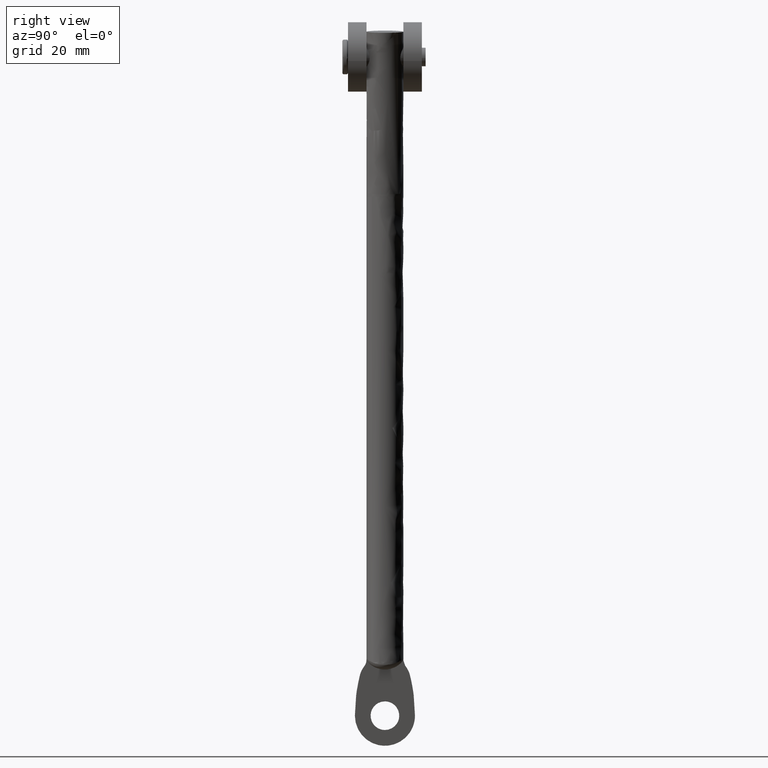
[diagram: clean part render]
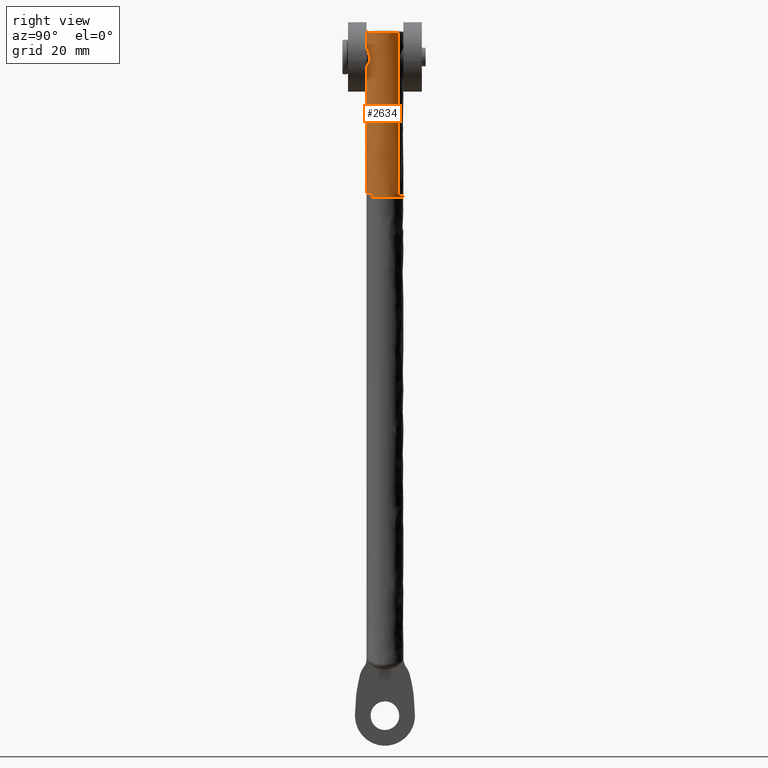
[diagram: same view with one face highlighted and labeled with its STEP entity id]
A machine part, right view. The second image highlights one B-rep face of the part: STEP entity #2634.
In plain terms, the highlighted face is a freeform B-spline surface patch.
Its self-contained STEP definition (entity closure, byte-faithful):
#1705=CARTESIAN_POINT('',(7.522348228105205,-3.999033050475186,144.668316830232700));
#1706=VERTEX_POINT('',#1705);
#1707=CARTESIAN_POINT('',(9.584145314944630,-3.323064257270348,142.307539947545000));
#1708=VERTEX_POINT('',#1707);
#1709=CARTESIAN_POINT('',(7.522348228105205,-3.999033050475186,144.668316830232700));
#1710=CARTESIAN_POINT('',(7.557369790289370,-3.999799256812178,144.667951010826700));
#1711=CARTESIAN_POINT('',(7.592510817187822,-4.000114873961673,144.666708364096510));
#1712=CARTESIAN_POINT('',(7.663038884572331,-3.999810891198615,144.662423080252010));
#1713=CARTESIAN_POINT('',(7.698345700500449,-3.999188046580984,144.659378522062010));
#1714=CARTESIAN_POINT('',(7.803206811101949,-3.995939152805263,144.647677468700100));
#1715=CARTESIAN_POINT('',(7.941105642463338,-3.987929447145600,144.625196934972110));
#1716=CARTESIAN_POINT('',(8.075300647290488,-3.972842566512861,144.589405100703910));
#1717=CARTESIAN_POINT('',(8.174568459927976,-3.958954388418349,144.557582681673690));
#1718=CARTESIAN_POINT('',(8.207427612885027,-3.953895939193590,144.546143891768310));
#1719=CARTESIAN_POINT('',(8.272682836400820,-3.942932152044237,144.521586735460010));
#1720=CARTESIAN_POINT('',(8.305089598803763,-3.937021360161204,144.508456869352390));
#1721=CARTESIAN_POINT('',(8.464097451847144,-3.905772972105924,144.439406191873500));
#1722=CARTESIAN_POINT('',(8.583258318506777,-3.875126871088678,144.372849611536510));
#1723=CARTESIAN_POINT('',(8.750948582059706,-3.822757064529819,144.256857295991210));
#1724=CARTESIAN_POINT('',(8.805236039969342,-3.804133192050053,144.215255989367390));
#1725=CARTESIAN_POINT('',(8.908697393156340,-3.765613016104545,144.127703545723700));
#1726=CARTESIAN_POINT('',(8.957848463982964,-3.745746873615110,144.081826383432400));
#1727=CARTESIAN_POINT('',(9.097977095895866,-3.684991635670443,143.937997963091900));
#1728=CARTESIAN_POINT('',(9.181709756552326,-3.642921026002477,143.833932488019600));
#1729=CARTESIAN_POINT('',(9.329996595224399,-3.559387319424268,143.608083212598100));
#1730=CARTESIAN_POINT('',(9.392380482635367,-3.519169568790809,143.489591796275500));
#1731=CARTESIAN_POINT('',(9.468894190977478,-3.464350623970773,143.303008461594090));
#1732=CARTESIAN_POINT('',(9.491534752083650,-3.446997324383999,143.239319523848710));
#1733=CARTESIAN_POINT('',(9.521042202518000,-3.422811974242806,143.141339899312810));
#1734=CARTESIAN_POINT('',(9.530134039435994,-3.415058305274926,143.108271373944890));
#1735=CARTESIAN_POINT('',(9.546780114274892,-3.400254634955333,143.041270015898700));
#1736=CARTESIAN_POINT('',(9.554327625278173,-3.393208042904296,143.007334097917610));
#1737=CARTESIAN_POINT('',(9.587694841701442,-3.360357171754894,142.837542751386910));
#1738=CARTESIAN_POINT('',(9.600984288663758,-3.341316971902931,142.699702151620190));
#1739=CARTESIAN_POINT('',(9.600100672203967,-3.326176681244016,142.489551382134210));
#1740=CARTESIAN_POINT('',(9.596233832376248,-3.323381778508662,142.418463212868890));
#1741=CARTESIAN_POINT('',(9.587422380482158,-3.322938020792144,142.334798561342500));
#1742=CARTESIAN_POINT('',(9.585849642784872,-3.322956180856969,142.321152390346500));
#1743=CARTESIAN_POINT('',(9.584145314944630,-3.323064257270348,142.307539947545000));
#1744=B_SPLINE_CURVE_WITH_KNOTS('',3,(#1709,#1710,#1711,#1712,#1713,#1714,#1715,#1716,#1717,#1718,#1719,#1720,#1721,#1722,#1723,#1724,#1725,#1726,#1727,#1728,#1729,#1730,#1731,#1732,#1733,#1734,#1735,#1736,#1737,#1738,#1739,#1740,#1741,#1742,#1743),.UNSPECIFIED.,.F.,.U.,(4,2,2,1,2,2,2,2,2,2,2,2,2,2,2,2,2,4),(0.499999999999975,0.507812499999978,0.515624999999981,0.531249999999986,0.546874999999991,0.554687499999994,0.562499999999997,0.593750000000004,0.609375000000007,0.625000000000011,0.656250000000018,0.687500000000024,0.703125000000028,0.710937500000027,0.718750000000025,0.750000000000020,0.765625000000021,0.768679257796802),.UNSPECIFIED.);
#1745=EDGE_CURVE('',#1706,#1708,#1744,.T.);
#1747=CARTESIAN_POINT('',(5.400495781253770,-3.485749266035983,142.586981427695290));
#1748=VERTEX_POINT('',#1747);
#1749=CARTESIAN_POINT('',(5.400495781253770,-3.485749266035983,142.586981427695290));
#1750=CARTESIAN_POINT('',(5.400782117082802,-3.483863611190825,142.619270091181590));
#1751=CARTESIAN_POINT('',(5.401819206709678,-3.482377763517798,142.651778725786190));
#1752=CARTESIAN_POINT('',(5.405540430557007,-3.480172275540046,142.719253350010210));
#1753=CARTESIAN_POINT('',(5.408357878279227,-3.479525640173766,142.754246216800510));
#1754=CARTESIAN_POINT('',(5.419389052906518,-3.479075903472400,142.858666118374490));
#1755=CARTESIAN_POINT('',(5.440961403684576,-3.482452705762751,142.996405121797610));
#1756=CARTESIAN_POINT('',(5.476025822054123,-3.493506780805759,143.131226244074810));
#1757=CARTESIAN_POINT('',(5.517924722043718,-3.508220612664518,143.264579208725710));
#1758=CARTESIAN_POINT('',(5.542400932748614,-3.517454551298635,143.330666533144610));
#1759=CARTESIAN_POINT('',(5.624300134182822,-3.549417632548673,143.522089834450810));
#1760=CARTESIAN_POINT('',(5.690512511989269,-3.576524923241928,143.642262952363210));
#1761=CARTESIAN_POINT('',(5.806950742020291,-3.622791789218599,143.812174591631900));
#1762=CARTESIAN_POINT('',(5.848714406237986,-3.639175086693637,143.867097286111000));
#1763=CARTESIAN_POINT('',(5.936385769433128,-3.672635224220298,143.971449676143690));
#1764=CARTESIAN_POINT('',(5.982478491296192,-3.689787396820571,144.021171339480190));
#1765=CARTESIAN_POINT('',(6.079174233507549,-3.724407050518975,144.115899984528400));
#1766=CARTESIAN_POINT('',(6.129777189082310,-3.741875658683250,144.160906626318310));
#1767=CARTESIAN_POINT('',(6.235649171771756,-3.776631226467709,144.246225336362390));
#1768=CARTESIAN_POINT('',(6.291225660387936,-3.794005255206803,144.286722819056000));
#1769=CARTESIAN_POINT('',(6.462471382096615,-3.844256914266055,144.399092732517800));
#1770=CARTESIAN_POINT('',(6.582752249643975,-3.875358962638651,144.462267873633490));
#1771=CARTESIAN_POINT('',(6.772868087680585,-3.915914749582967,144.539562305664190));
#1772=CARTESIAN_POINT('',(6.837867076805112,-3.928417803244545,144.562391556583800));
#1773=CARTESIAN_POINT('',(6.937988841133791,-3.945307907994606,144.592014721619710));
#1774=CARTESIAN_POINT('',(6.971850426553328,-3.950631232225036,144.601123078487600));
#1775=CARTESIAN_POINT('',(7.039594714730066,-3.960472829058025,144.617543516555090));
#1776=CARTESIAN_POINT('',(7.073580116354962,-3.965009744915900,144.624888989570790));
#1777=CARTESIAN_POINT('',(7.244072608372806,-3.985715770043698,144.657346598526910));
#1778=CARTESIAN_POINT('',(7.382261979366867,-3.995968225127181,144.669780107857010));
#1779=CARTESIAN_POINT('',(7.522348228105205,-3.999033050475186,144.668316830232700));
#1780=B_SPLINE_CURVE_WITH_KNOTS('',3,(#1749,#1750,#1751,#1752,#1753,#1754,#1755,#1756,#1757,#1758,#1759,#1760,#1761,#1762,#1763,#1764,#1765,#1766,#1767,#1768,#1769,#1770,#1771,#1772,#1773,#1774,#1775,#1776,#1777,#1778,#1779),.UNSPECIFIED.,.F.,.U.,(4,2,2,1,2,2,2,2,2,2,2,2,2,2,2,4),(0.250641929737073,0.257812499999935,0.265624999999935,0.281249999999935,0.296874999999936,0.312499999999936,0.343749999999937,0.359374999999940,0.374999999999943,0.390624999999947,0.406249999999950,0.437499999999956,0.453124999999959,0.460937499999962,0.468749999999964,0.499999999999975),.UNSPECIFIED.);
#1781=EDGE_CURVE('',#1748,#1706,#1780,.T.);
#1891=CARTESIAN_POINT('',(7.500413774066671,-3.983493086659858,140.468431385803400));
#1892=VERTEX_POINT('',#1891);
#1893=CARTESIAN_POINT('',(9.584145314944630,-3.323064257270348,142.307539947545000));
#1894=CARTESIAN_POINT('',(9.577132411973437,-3.323509079178129,142.251513507554900));
#1895=CARTESIAN_POINT('',(9.556415344075470,-3.327923223263147,142.127128092388890));
#1896=CARTESIAN_POINT('',(9.524769654435957,-3.339718687005999,142.005540774241690));
#1897=CARTESIAN_POINT('',(9.482969095531230,-3.357074424357856,141.872488163763990));
#1898=CARTESIAN_POINT('',(9.458548080945450,-3.367969722364957,141.806522540427010));
#1899=CARTESIAN_POINT('',(9.376879018284551,-3.405697645173910,141.615510404296600));
#1900=CARTESIAN_POINT('',(9.311067155461911,-3.437621001344986,141.496014262078400));
#1901=CARTESIAN_POINT('',(9.195817830934040,-3.492147463437765,141.327366873917700));
#1902=CARTESIAN_POINT('',(9.154575400494737,-3.511453113384161,141.272941589728900));
#1903=CARTESIAN_POINT('',(9.068081296893043,-3.550989232954838,141.169516436295910));
#1904=CARTESIAN_POINT('',(9.022650189313154,-3.571306387241904,141.120236244447910));
#1905=CARTESIAN_POINT('',(8.927416420113763,-3.612497219005186,141.026310664354300));
#1906=CARTESIAN_POINT('',(8.877613758725936,-3.633372103365515,140.981665795973900));
#1907=CARTESIAN_POINT('',(8.773477323644185,-3.675189908119828,140.896960765795510));
#1908=CARTESIAN_POINT('',(8.718875351548805,-3.696226407753704,140.856742961933010));
#1909=CARTESIAN_POINT('',(8.550791832931614,-3.757664220669129,140.745025386499490));
#1910=CARTESIAN_POINT('',(8.432639220388428,-3.796605347731475,140.681846095125710));
#1911=CARTESIAN_POINT('',(8.245589787852104,-3.849623722899934,140.603927684121600));
#1912=CARTESIAN_POINT('',(8.181592166423320,-3.866399326264194,140.580787166497000));
#1913=CARTESIAN_POINT('',(8.082921748388877,-3.889903324614602,140.550544410266810));
#1914=CARTESIAN_POINT('',(8.049527944886737,-3.897471268461609,140.541200050865800));
#1915=CARTESIAN_POINT('',(7.982555765364626,-3.911842204515218,140.524236591226410));
#1916=CARTESIAN_POINT('',(7.948896313355117,-3.918665849770243,140.516589618309010));
#1917=CARTESIAN_POINT('',(7.847392322282751,-3.938009624179298,140.496145016934010));
#1918=CARTESIAN_POINT('',(7.779023217068352,-3.949403540865938,140.485837083094710));
#1919=CARTESIAN_POINT('',(7.640831291521633,-3.968948677223132,140.471980772934900));
#1920=CARTESIAN_POINT('',(7.570876085715216,-3.977112608975493,140.468431385803400));
#1921=CARTESIAN_POINT('',(7.500413774066672,-3.983493086659858,140.468431385803400));
#1922=B_SPLINE_CURVE_WITH_KNOTS('',3,(#1893,#1894,#1895,#1896,#1897,#1898,#1899,#1900,#1901,#1902,#1903,#1904,#1905,#1906,#1907,#1908,#1909,#1910,#1911,#1912,#1913,#1914,#1915,#1916,#1917,#1918,#1919,#1920,#1921),.UNSPECIFIED.,.F.,.U.,(4,1,2,2,2,2,2,2,2,2,2,2,2,2,4),(0.768679257796804,0.781250000000021,0.796875000000022,0.812500000000023,0.843750000000018,0.859375000000015,0.875000000000013,0.890625000000011,0.906250000000008,0.937500000000004,0.953125000000001,0.960937500000001,0.968750000000001,0.984375000000000,1.0),.UNSPECIFIED.);
#1923=EDGE_CURVE('',#1708,#1892,#1922,.T.);
#1996=CARTESIAN_POINT('',(7.500413774066671,-3.983493086659858,140.468431385803400));
#1997=CARTESIAN_POINT('',(7.359489150769635,-3.996254042028581,140.468431385803400));
#1998=CARTESIAN_POINT('',(7.220639063376971,-4.001547785787827,140.482474434529510));
#1999=CARTESIAN_POINT('',(7.015389819909257,-3.998645634738748,140.524018429299590));
#2000=CARTESIAN_POINT('',(6.947481599295213,-3.995867064794929,140.541305201046810));
#2001=CARTESIAN_POINT('',(6.812715024943890,-3.986702863774430,140.582973003142510));
#2002=CARTESIAN_POINT('',(6.746891537089369,-3.980382606715997,140.607046461523000));
#2003=CARTESIAN_POINT('',(6.554912192965860,-3.956836110833307,140.688183239576290));
#2004=CARTESIAN_POINT('',(6.433715989905613,-3.934998810680285,140.754218480863700));
#2005=CARTESIAN_POINT('',(6.261816114940805,-3.894906237104327,140.871175071747190));
#2006=CARTESIAN_POINT('',(6.206788839194220,-3.880453469645037,140.912773731844000));
#2007=CARTESIAN_POINT('',(6.101908835658576,-3.850072486222776,141.000358786563790));
#2008=CARTESIAN_POINT('',(6.051904775826164,-3.834107937976753,141.046448287614310));
#2009=CARTESIAN_POINT('',(5.956606912839136,-3.801081490485000,141.143204651426090));
#2010=CARTESIAN_POINT('',(5.911313225676175,-3.784018445038443,141.193871246318790));
#2011=CARTESIAN_POINT('',(5.825431609613172,-3.749250382804417,141.299931926316790));
#2012=CARTESIAN_POINT('',(5.784998814216686,-3.731596578628861,141.355192269109210));
#2013=CARTESIAN_POINT('',(5.672959746662930,-3.679452581782400,141.524974471147910));
#2014=CARTESIAN_POINT('',(5.609689512921571,-3.645432674887922,141.644420008433000));
#2015=CARTESIAN_POINT('',(5.544868442574797,-3.606465967752021,141.802267460748990));
#2016=CARTESIAN_POINT('',(5.532625529457278,-3.598852183723529,141.834268652646100));
#2017=CARTESIAN_POINT('',(5.509615423972563,-3.584058237506167,141.899172524343610));
#2018=CARTESIAN_POINT('',(5.498833436645580,-3.576866418134967,141.932140147093890));
#2019=CARTESIAN_POINT('',(5.469100436197536,-3.556295825056234,142.031283665123400));
#2020=CARTESIAN_POINT('',(5.452624440848628,-3.543841670280887,142.098029726874190));
#2021=CARTESIAN_POINT('',(5.413077831845091,-3.510888047349960,142.300281874951510));
#2022=CARTESIAN_POINT('',(5.399775603735547,-3.494794041932452,142.437785260614990));
#2023=CARTESIAN_POINT('',(5.400450621132369,-3.486090088547184,142.581202044848510));
#2024=CARTESIAN_POINT('',(5.400470230514630,-3.485918075200404,142.584090854495290));
#2025=CARTESIAN_POINT('',(5.400495781253770,-3.485749266035983,142.586981427695290));
#2026=B_SPLINE_CURVE_WITH_KNOTS('',3,(#1996,#1997,#1998,#1999,#2000,#2001,#2002,#2003,#2004,#2005,#2006,#2007,#2008,#2009,#2010,#2011,#2012,#2013,#2014,#2015,#2016,#2017,#2018,#2019,#2020,#2021,#2022,#2023,#2024,#2025),.UNSPECIFIED.,.F.,.U.,(4,2,2,2,2,2,2,2,2,2,2,2,2,2,4),(0.0,0.031249999999987,0.046874999999982,0.062499999999976,0.093749999999962,0.109374999999957,0.124999999999952,0.140624999999947,0.156249999999942,0.187499999999932,0.195312499999932,0.203124999999933,0.218749999999933,0.249999999999934,0.250641929737074),.UNSPECIFIED.);
#2027=EDGE_CURVE('',#1892,#1748,#2026,.T.);
#2530=CARTESIAN_POINT('',(1.511838481812356,-3.157639682176491,112.644301421692750));
#2531=CARTESIAN_POINT('',(4.305819234667315,-5.344211479530958,112.327784699296200));
#2532=CARTESIAN_POINT('',(6.786567123674950,-2.803637057199411,112.046752630582500));
#2533=CARTESIAN_POINT('',(9.572385213505458,0.049364739417307,111.731160617256990));
#2534=CARTESIAN_POINT('',(6.737516129818465,2.853001796616718,112.052309383180000));
#2535=CARTESIAN_POINT('',(5.678517627877421,-3.157639682176491,149.424732007728550));
#2536=CARTESIAN_POINT('',(8.472498380732379,-5.344211479530958,149.108215285331850));
#2537=CARTESIAN_POINT('',(10.953246269740010,-2.803637057199411,148.827183216618210));
#2538=CARTESIAN_POINT('',(13.739064359570520,0.049364739417307,148.511591203292570));
#2539=CARTESIAN_POINT('',(10.904195275883531,2.853001796616718,148.832739969215710));
#2547=(BOUNDED_SURFACE()B_SPLINE_SURFACE(2,1,((#2530,#2535),(#2531,#2536),(#2532,#2537),(#2533,#2538),(#2534,#2539)),.UNSPECIFIED.,.F.,.F.,.U.)B_SPLINE_SURFACE_WITH_KNOTS((3,2,3),(2,2),(0.0,6.097223638131957,12.724640636101480),(0.0,37.015689770696490),.UNSPECIFIED.)GEOMETRIC_REPRESENTATION_ITEM()RATIONAL_B_SPLINE_SURFACE(((0.956886118190660,0.956886118190660),(0.730538238691624,0.730538238691624),(1.0,1.0),(0.707106781186548,0.707106781186548),(1.0,1.0)))REPRESENTATION_ITEM('')SURFACE());
#2548=CARTESIAN_POINT('',(5.538012392364291,-3.157644222997639,148.184401512317210));
#2549=VERTEX_POINT('',#2548);
#2550=CARTESIAN_POINT('',(11.991328220466670,0.0,147.800987442292210));
#2551=VERTEX_POINT('',#2550);
#2552=CARTESIAN_POINT('',(5.538012392364291,-3.157644222997640,148.184401512317090));
#2553=CARTESIAN_POINT('',(6.620895708379037,-3.999999907547748,148.120063952599760));
#2554=CARTESIAN_POINT('',(7.992656665644771,-3.999999924871387,148.038562994787100));
#2555=CARTESIAN_POINT('',(11.991328295907989,-3.999999975369648,147.800988389591850));
#2556=CARTESIAN_POINT('',(11.991328220466670,0.0,147.800987442292210));
#2564=(BOUNDED_CURVE()B_SPLINE_CURVE(2,(#2552,#2553,#2554,#2555,#2556),.UNSPECIFIED.,.F.,.U.)B_SPLINE_CURVE_WITH_KNOTS((3,2,3),(0.643802461475620,0.750000000000000,1.0),.UNSPECIFIED.)CURVE()GEOMETRIC_REPRESENTATION_ITEM()RATIONAL_B_SPLINE_CURVE((0.856866903832758,0.875581844446115,1.0,0.707106781186548,1.0))REPRESENTATION_ITEM(''));
#2565=EDGE_CURVE('',#2549,#2551,#2564,.T.);
#2566=ORIENTED_EDGE('',*,*,#2565,.F.);
#2567=CARTESIAN_POINT('',(1.610989535584489,-3.157642361702258,113.519504617095190));
#2568=VERTEX_POINT('',#2567);
#2569=CARTESIAN_POINT('',(1.610989535584489,-3.157642361702258,113.519504617095190));
#2570=CARTESIAN_POINT('',(5.538012392364291,-3.157644222997639,148.184401512317210));
#2571=QUASI_UNIFORM_CURVE('',1,(#2569,#2570),.UNSPECIFIED.,.F.,.U.);
#2572=EDGE_CURVE('',#2568,#2549,#2571,.T.);
#2573=ORIENTED_EDGE('',*,*,#2572,.F.);
#2574=CARTESIAN_POINT('',(8.025423024929079,0.0,112.792844112364190));
#2575=VERTEX_POINT('',#2574);
#2576=CARTESIAN_POINT('',(8.025423024929079,0.0,112.792844112364190));
#2577=CARTESIAN_POINT('',(8.025423024929079,-4.000000000000000,112.792844112364160));
#2578=CARTESIAN_POINT('',(4.050845669879710,-4.0,113.243104979783000));
#2579=CARTESIAN_POINT('',(2.687348579077439,-4.0,113.397569046773100));
#2580=CARTESIAN_POINT('',(1.610989535584490,-3.157642361702259,113.519504617095190));
#2588=(BOUNDED_CURVE()B_SPLINE_CURVE(2,(#2576,#2577,#2578,#2579,#2580),.UNSPECIFIED.,.F.,.U.)B_SPLINE_CURVE_WITH_KNOTS((3,2,3),(0.0,0.250000000000000,0.356197659571987),.UNSPECIFIED.)CURVE()GEOMETRIC_REPRESENTATION_ITEM()RATIONAL_B_SPLINE_CURVE((1.0,0.707106781186548,1.0,0.875581702630022,0.856866861169029))REPRESENTATION_ITEM(''));
#2589=EDGE_CURVE('',#2575,#2568,#2588,.T.);
#2590=ORIENTED_EDGE('',*,*,#2589,.F.);
#2591=CARTESIAN_POINT('',(6.836663256583688,2.853002294104880,112.927513023445300));
#2592=VERTEX_POINT('',#2591);
#2593=CARTESIAN_POINT('',(6.836663256583689,2.853002294104880,112.927513023445330));
#2594=CARTESIAN_POINT('',(8.025423024929079,1.677340041612158,112.792844112364180));
#2595=CARTESIAN_POINT('',(8.025423024929079,0.0,112.792844112364190));
#2603=(BOUNDED_CURVE()B_SPLINE_CURVE(2,(#2593,#2594,#2595),.UNSPECIFIED.,.F.,.U.)B_SPLINE_CURVE_WITH_KNOTS((3,3),(0.873683188859788,1.0),.UNSPECIFIED.)CURVE()GEOMETRIC_REPRESENTATION_ITEM()RATIONAL_B_SPLINE_CURVE((0.853569642573273,0.852010650379569,1.0))REPRESENTATION_ITEM(''));
#2604=EDGE_CURVE('',#2592,#2575,#2603,.T.);
#2605=ORIENTED_EDGE('',*,*,#2604,.F.);
#2606=CARTESIAN_POINT('',(10.795361536965080,2.853002214009421,147.872038192749390));
#2607=VERTEX_POINT('',#2606);
#2608=CARTESIAN_POINT('',(6.836663256583688,2.853002294104880,112.927513023445300));
#2609=CARTESIAN_POINT('',(10.795361536965080,2.853002214009421,147.872038192749390));
#2610=QUASI_UNIFORM_CURVE('',1,(#2608,#2609),.UNSPECIFIED.,.F.,.U.);
#2611=EDGE_CURVE('',#2592,#2607,#2610,.T.);
#2612=ORIENTED_EDGE('',*,*,#2611,.T.);
#2613=CARTESIAN_POINT('',(11.991328220466670,0.0,147.800987442292210));
#2614=CARTESIAN_POINT('',(11.991328003253905,1.677339603233838,147.800984910603690));
#2615=CARTESIAN_POINT('',(10.795361536965082,2.853002214009421,147.872038192749360));
#2623=(BOUNDED_CURVE()B_SPLINE_CURVE(2,(#2613,#2614,#2615),.UNSPECIFIED.,.F.,.U.)B_SPLINE_CURVE_WITH_KNOTS((3,3),(0.0,0.126316787372488),.UNSPECIFIED.)CURVE()GEOMETRIC_REPRESENTATION_ITEM()RATIONAL_B_SPLINE_CURVE((1.0,0.852010678225191,0.853569641986599))REPRESENTATION_ITEM(''));
#2624=EDGE_CURVE('',#2551,#2607,#2623,.T.);
#2625=ORIENTED_EDGE('',*,*,#2624,.F.);
#2626=EDGE_LOOP('',(#2566,#2573,#2590,#2605,#2612,#2625));
#2627=FACE_OUTER_BOUND('',#2626,.T.);
#2628=ORIENTED_EDGE('',*,*,#2027,.T.);
#2629=ORIENTED_EDGE('',*,*,#1781,.T.);
#2630=ORIENTED_EDGE('',*,*,#1745,.T.);
#2631=ORIENTED_EDGE('',*,*,#1923,.T.);
#2632=EDGE_LOOP('',(#2628,#2629,#2630,#2631));
#2633=FACE_BOUND('',#2632,.T.);
#2634=ADVANCED_FACE('',(#2627,#2633),#2547,.T.);